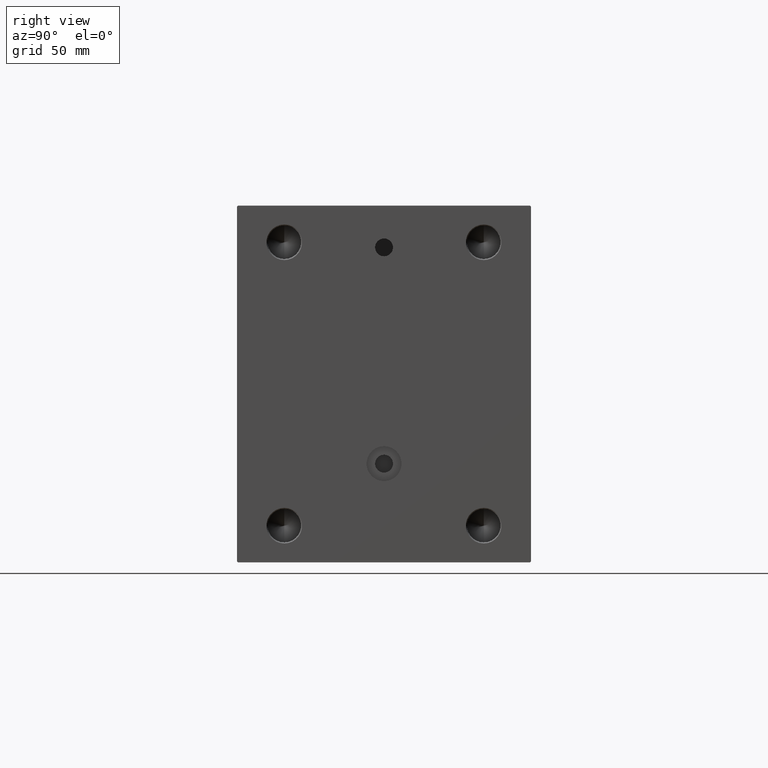
[diagram: clean part render]
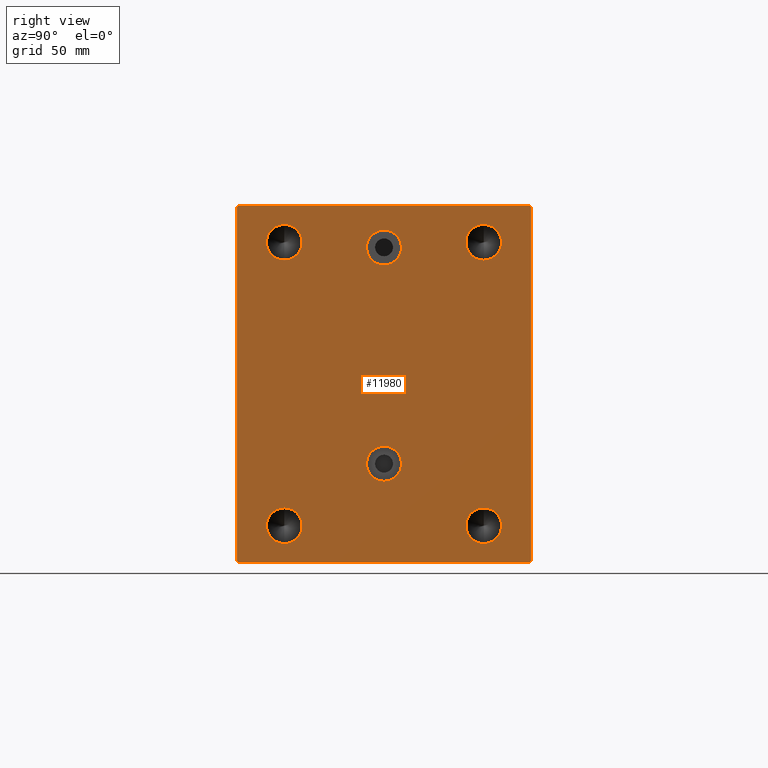
[diagram: same view with one face highlighted and labeled with its STEP entity id]
A machine part, right view. The second image highlights one B-rep face of the part: STEP entity #11980.
In plain terms, the highlighted planar face has unit normal (1, 0, 0).
Its self-contained STEP definition (entity closure, byte-faithful):
#128 = VERTEX_POINT ( 'NONE', #32341 ) ;
#343 = FACE_BOUND ( 'NONE', #4712, .T. ) ;
#427 = ORIENTED_EDGE ( 'NONE', *, *, #10787, .F. ) ;
#527 = DIRECTION ( 'NONE',  ( 0.000000000000000000, 0.000000000000000000, 1.000000000000000000 ) ) ;
#566 = VERTEX_POINT ( 'NONE', #24402 ) ;
#607 = VERTEX_POINT ( 'NONE', #21046 ) ;
#852 = ORIENTED_EDGE ( 'NONE', *, *, #6745, .F. ) ;
#1349 = CARTESIAN_POINT ( 'NONE',  ( 255.0000000000000000, 70.00000000000001421, -85.00000000000000000 ) ) ;
#1381 = DIRECTION ( 'NONE',  ( 1.000000000000000000, 0.000000000000000000, 0.000000000000000000 ) ) ;
#1583 = DIRECTION ( 'NONE',  ( 0.000000000000000000, 0.000000000000000000, -1.000000000000000000 ) ) ;
#2066 = VECTOR ( 'NONE', #29096, 1000.000000000000000 ) ;
#2089 = DIRECTION ( 'NONE',  ( 1.000000000000000000, -0.000000000000000000, -0.000000000000000000 ) ) ;
#2995 = VERTEX_POINT ( 'NONE', #32737 ) ;
#3624 = CARTESIAN_POINT ( 'NONE',  ( 255.0000000000000000, -1.571475800653548713E-14, 65.00000000000001421 ) ) ;
#3709 = FACE_BOUND ( 'NONE', #8506, .T. ) ;
#3815 = CARTESIAN_POINT ( 'NONE',  ( 255.0000000000000000, 47.50000000000000000, -76.00000000000001421 ) ) ;
#4002 = CARTESIAN_POINT ( 'NONE',  ( 255.0000000000000000, 5.673788620449684336E-15, -29.66999999999997328 ) ) ;
#4076 = CARTESIAN_POINT ( 'NONE',  ( 255.0000000000000000, 70.00000000000000000, 85.00000000000001421 ) ) ;
#4096 = AXIS2_PLACEMENT_3D ( 'NONE', #32868, #8978, #43369 ) ;
#4216 = CIRCLE ( 'NONE', #13476, 8.330000000000003624 ) ;
#4306 = CARTESIAN_POINT ( 'NONE',  ( 255.0000000000000000, -1.571475800653548713E-14, 65.00000000000001421 ) ) ;
#4495 = CIRCLE ( 'NONE', #37998, 8.500000000000007105 ) ;
#4686 = CARTESIAN_POINT ( 'NONE',  ( 255.0000000000000000, -69.49999999999995737, -85.00000000000000000 ) ) ;
#4712 = EDGE_LOOP ( 'NONE', ( #7620, #10886 ) ) ;
#4863 = VERTEX_POINT ( 'NONE', #4002 ) ;
#4954 = VECTOR ( 'NONE', #35330, 1000.000000000000000 ) ;
#5183 = LINE ( 'NONE', #38911, #8289 ) ;
#6127 = DIRECTION ( 'NONE',  ( 0.000000000000000000, 0.000000000000000000, -1.000000000000000000 ) ) ;
#6512 = LINE ( 'NONE', #20093, #8556 ) ;
#6586 = DIRECTION ( 'NONE',  ( 1.000000000000000000, -0.000000000000000000, -0.000000000000000000 ) ) ;
#6745 = EDGE_CURVE ( 'NONE', #10003, #32501, #4495, .T. ) ;
#7160 = CIRCLE ( 'NONE', #42834, 8.500000000000007105 ) ;
#7469 = CARTESIAN_POINT ( 'NONE',  ( 255.0000000000000000, 4.653657836759937996E-15, -37.99999999999997868 ) ) ;
#7620 = ORIENTED_EDGE ( 'NONE', *, *, #10365, .F. ) ;
#7665 = CARTESIAN_POINT ( 'NONE',  ( 255.0000000000000000, -77.24999999999803890, 77.25000000000234479 ) ) ;
#7726 = ORIENTED_EDGE ( 'NONE', *, *, #20102, .T. ) ;
#8289 = VECTOR ( 'NONE', #28845, 1000.000000000000114 ) ;
#8506 = EDGE_LOOP ( 'NONE', ( #18135, #30189 ) ) ;
#8556 = VECTOR ( 'NONE', #16749, 1000.000000000000000 ) ;
#8978 = DIRECTION ( 'NONE',  ( 1.000000000000000000, -0.000000000000000000, -0.000000000000000000 ) ) ;
#9203 = CIRCLE ( 'NONE', #36302, 8.500000000000007105 ) ;
#10003 = VERTEX_POINT ( 'NONE', #25921 ) ;
#10091 = CARTESIAN_POINT ( 'NONE',  ( 255.0000000000000000, -47.50000000000000000, 75.99999999999998579 ) ) ;
#10365 = EDGE_CURVE ( 'NONE', #12544, #19549, #13781, .T. ) ;
#10787 = EDGE_CURVE ( 'NONE', #29301, #566, #43070, .T. ) ;
#10886 = ORIENTED_EDGE ( 'NONE', *, *, #25432, .F. ) ;
#11221 = AXIS2_PLACEMENT_3D ( 'NONE', #3624, #37580, #13666 ) ;
#11695 = VERTEX_POINT ( 'NONE', #18892 ) ;
#11892 = CIRCLE ( 'NONE', #43988, 8.330000000000003624 ) ;
#11980 = ADVANCED_FACE ( 'NONE', ( #34517, #3709, #17294, #30948, #21924, #343, #21092 ), #18350, .T. ) ;
#12055 = VECTOR ( 'NONE', #21783, 999.9999999999998863 ) ;
#12115 = DIRECTION ( 'NONE',  ( 0.000000000000000000, 0.000000000000000000, -1.000000000000000000 ) ) ;
#12139 = VECTOR ( 'NONE', #34947, 1000.000000000000000 ) ;
#12544 = VERTEX_POINT ( 'NONE', #35246 ) ;
#12794 = CARTESIAN_POINT ( 'NONE',  ( 255.0000000000000000, -47.50000000000000000, 67.49999999999998579 ) ) ;
#13086 = AXIS2_PLACEMENT_3D ( 'NONE', #43425, #33148, #6127 ) ;
#13088 = EDGE_CURVE ( 'NONE', #32501, #10003, #27430, .T. ) ;
#13476 = AXIS2_PLACEMENT_3D ( 'NONE', #7469, #35373, #35593 ) ;
#13666 = DIRECTION ( 'NONE',  ( 0.000000000000000000, 0.000000000000000000, -1.000000000000000000 ) ) ;
#13695 = VERTEX_POINT ( 'NONE', #32406 ) ;
#13781 = CIRCLE ( 'NONE', #38765, 8.500000000000007105 ) ;
#13963 = DIRECTION ( 'NONE',  ( 0.000000000000000000, 0.000000000000000000, -1.000000000000000000 ) ) ;
#14322 = LINE ( 'NONE', #4076, #4954 ) ;
#14390 = LINE ( 'NONE', #21302, #12139 ) ;
#14461 = EDGE_CURVE ( 'NONE', #27945, #33192, #21672, .T. ) ;
#14554 = DIRECTION ( 'NONE',  ( 0.000000000000000000, 0.000000000000000000, -1.000000000000000000 ) ) ;
#15080 = CARTESIAN_POINT ( 'NONE',  ( 255.0000000000000000, 77.25000000000099476, -77.24999999999884892 ) ) ;
#15166 = CARTESIAN_POINT ( 'NONE',  ( 255.0000000000000000, 70.00000000000000000, 84.49999999999997158 ) ) ;
#15202 = CIRCLE ( 'NONE', #40205, 8.330000000000003624 ) ;
#15461 = CARTESIAN_POINT ( 'NONE',  ( 255.0000000000000000, -70.00000000000000000, 84.99999999999998579 ) ) ;
#15925 = ORIENTED_EDGE ( 'NONE', *, *, #26486, .F. ) ;
#16166 = EDGE_LOOP ( 'NONE', ( #37528, #7726, #18896, #33145, #36464, #41450, #42334, #42518 ) ) ;
#16749 = DIRECTION ( 'NONE',  ( 0.000000000000000000, 1.000000000000000000, 0.000000000000000000 ) ) ;
#17294 = FACE_BOUND ( 'NONE', #20257, .T. ) ;
#17610 = CIRCLE ( 'NONE', #4096, 8.500000000000007105 ) ;
#17680 = LINE ( 'NONE', #7665, #33904 ) ;
#17899 = DIRECTION ( 'NONE',  ( 1.000000000000000000, 0.000000000000000000, 0.000000000000000000 ) ) ;
#18133 = AXIS2_PLACEMENT_3D ( 'NONE', #37181, #6586, #30474 ) ;
#18135 = ORIENTED_EDGE ( 'NONE', *, *, #30876, .F. ) ;
#18329 = CARTESIAN_POINT ( 'NONE',  ( 255.0000000000000000, 47.50000000000000000, 67.49999999999998579 ) ) ;
#18350 = PLANE ( 'NONE',  #39536 ) ;
#18547 = DIRECTION ( 'NONE',  ( 1.000000000000000000, -0.000000000000000000, -0.000000000000000000 ) ) ;
#18719 = DIRECTION ( 'NONE',  ( 0.000000000000000000, 0.000000000000000000, -1.000000000000000000 ) ) ;
#18892 = CARTESIAN_POINT ( 'NONE',  ( 255.0000000000000000, -1.571475800653548713E-14, 56.67000000000000881 ) ) ;
#18896 = ORIENTED_EDGE ( 'NONE', *, *, #35638, .T. ) ;
#19206 = CIRCLE ( 'NONE', #24187, 8.500000000000007105 ) ;
#19541 = VERTEX_POINT ( 'NONE', #34403 ) ;
#19549 = VERTEX_POINT ( 'NONE', #3815 ) ;
#20093 = CARTESIAN_POINT ( 'NONE',  ( 255.0000000000000000, -70.00000000000000000, -85.00000000000000000 ) ) ;
#20102 = EDGE_CURVE ( 'NONE', #19541, #128, #17680, .T. ) ;
#20103 = ORIENTED_EDGE ( 'NONE', *, *, #33991, .F. ) ;
#20257 = EDGE_LOOP ( 'NONE', ( #41548, #852 ) ) ;
#21046 = CARTESIAN_POINT ( 'NONE',  ( 255.0000000000000000, 69.50000000000005684, -85.00000000000000000 ) ) ;
#21092 = FACE_OUTER_BOUND ( 'NONE', #16166, .T. ) ;
#21106 = DIRECTION ( 'NONE',  ( 0.000000000000000000, 0.000000000000000000, -1.000000000000000000 ) ) ;
#21302 = CARTESIAN_POINT ( 'NONE',  ( 255.0000000000000000, 77.25000000000096634, 77.24999999999883471 ) ) ;
#21328 = EDGE_CURVE ( 'NONE', #31616, #36853, #5183, .T. ) ;
#21672 = LINE ( 'NONE', #1349, #43864 ) ;
#21769 = CARTESIAN_POINT ( 'NONE',  ( 255.0000000000000000, 70.00000000000001421, -84.50000000000002842 ) ) ;
#21783 = DIRECTION ( 'NONE',  ( -0.000000000000000000, 0.7071067811865376918, 0.7071067811865574537 ) ) ;
#21924 = FACE_BOUND ( 'NONE', #42137, .T. ) ;
#22097 = EDGE_LOOP ( 'NONE', ( #20103, #22559 ) ) ;
#22559 = ORIENTED_EDGE ( 'NONE', *, *, #31888, .F. ) ;
#23553 = EDGE_CURVE ( 'NONE', #4863, #31322, #11892, .T. ) ;
#23566 = VERTEX_POINT ( 'NONE', #26897 ) ;
#23762 = DIRECTION ( 'NONE',  ( 1.000000000000000000, 0.000000000000000000, -0.000000000000000000 ) ) ;
#24187 = AXIS2_PLACEMENT_3D ( 'NONE', #12794, #2089, #26203 ) ;
#24402 = CARTESIAN_POINT ( 'NONE',  ( 255.0000000000000000, -47.50000000000000000, -59.00000000000002132 ) ) ;
#24464 = DIRECTION ( 'NONE',  ( 1.000000000000000000, -0.000000000000000000, -0.000000000000000000 ) ) ;
#24487 = CARTESIAN_POINT ( 'NONE',  ( 255.0000000000000000, 4.653657836759937996E-15, -46.32999999999998408 ) ) ;
#24799 = ORIENTED_EDGE ( 'NONE', *, *, #30326, .F. ) ;
#25302 = LINE ( 'NONE', #15461, #2066 ) ;
#25432 = EDGE_CURVE ( 'NONE', #19549, #12544, #17610, .T. ) ;
#25908 = DIRECTION ( 'NONE',  ( 0.000000000000000000, -8.163404592832031500E-17, 1.000000000000000000 ) ) ;
#25921 = CARTESIAN_POINT ( 'NONE',  ( 255.0000000000000000, 47.50000000000000000, 59.00000000000000000 ) ) ;
#26203 = DIRECTION ( 'NONE',  ( 0.000000000000000000, 0.000000000000000000, -1.000000000000000000 ) ) ;
#26486 = EDGE_CURVE ( 'NONE', #11695, #23566, #44042, .T. ) ;
#26707 = CARTESIAN_POINT ( 'NONE',  ( 255.0000000000000000, 47.50000000000000000, -67.50000000000001421 ) ) ;
#26897 = CARTESIAN_POINT ( 'NONE',  ( 255.0000000000000000, -1.469462722284573843E-14, 73.33000000000002672 ) ) ;
#27355 = CARTESIAN_POINT ( 'NONE',  ( 255.0000000000000000, -70.00000000000000000, -84.49999999999994316 ) ) ;
#27430 = CIRCLE ( 'NONE', #18133, 8.500000000000007105 ) ;
#27945 = VERTEX_POINT ( 'NONE', #21769 ) ;
#28660 = DIRECTION ( 'NONE',  ( 1.000000000000000000, -0.000000000000000000, -0.000000000000000000 ) ) ;
#28845 = DIRECTION ( 'NONE',  ( -0.000000000000000000, 0.7071067811865376918, -0.7071067811865573427 ) ) ;
#29096 = DIRECTION ( 'NONE',  ( 0.000000000000000000, 0.000000000000000000, -1.000000000000000000 ) ) ;
#29301 = VERTEX_POINT ( 'NONE', #30196 ) ;
#29889 = CARTESIAN_POINT ( 'NONE',  ( 255.0000000000000000, 47.50000000000000000, 75.99999999999998579 ) ) ;
#30051 = EDGE_CURVE ( 'NONE', #607, #27945, #31852, .T. ) ;
#30189 = ORIENTED_EDGE ( 'NONE', *, *, #23553, .F. ) ;
#30196 = CARTESIAN_POINT ( 'NONE',  ( 255.0000000000000000, -47.50000000000000000, -76.00000000000001421 ) ) ;
#30258 = CARTESIAN_POINT ( 'NONE',  ( 255.0000000000000000, 4.653657836759937996E-15, -37.99999999999997868 ) ) ;
#30326 = EDGE_CURVE ( 'NONE', #566, #29301, #9203, .T. ) ;
#30474 = DIRECTION ( 'NONE',  ( 0.000000000000000000, 0.000000000000000000, -1.000000000000000000 ) ) ;
#30876 = EDGE_CURVE ( 'NONE', #31322, #4863, #4216, .T. ) ;
#30948 = FACE_BOUND ( 'NONE', #22097, .T. ) ;
#31322 = VERTEX_POINT ( 'NONE', #24487 ) ;
#31616 = VERTEX_POINT ( 'NONE', #27355 ) ;
#31852 = LINE ( 'NONE', #15080, #12055 ) ;
#31888 = EDGE_CURVE ( 'NONE', #13695, #35138, #19206, .T. ) ;
#31995 = CARTESIAN_POINT ( 'NONE',  ( 255.0000000000000000, 0.000000000000000000, 0.000000000000000000 ) ) ;
#32115 = EDGE_CURVE ( 'NONE', #2995, #19541, #14322, .T. ) ;
#32341 = CARTESIAN_POINT ( 'NONE',  ( 255.0000000000000000, -70.00000000000000000, 84.49999999999998579 ) ) ;
#32406 = CARTESIAN_POINT ( 'NONE',  ( 255.0000000000000000, -47.50000000000000000, 59.00000000000000000 ) ) ;
#32501 = VERTEX_POINT ( 'NONE', #29889 ) ;
#32737 = CARTESIAN_POINT ( 'NONE',  ( 255.0000000000000000, 69.49999999999997158, 85.00000000000001421 ) ) ;
#32868 = CARTESIAN_POINT ( 'NONE',  ( 255.0000000000000000, 47.50000000000000000, -67.50000000000001421 ) ) ;
#33105 = EDGE_CURVE ( 'NONE', #36853, #607, #6512, .T. ) ;
#33145 = ORIENTED_EDGE ( 'NONE', *, *, #21328, .T. ) ;
#33148 = DIRECTION ( 'NONE',  ( 1.000000000000000000, -0.000000000000000000, -0.000000000000000000 ) ) ;
#33192 = VERTEX_POINT ( 'NONE', #15166 ) ;
#33904 = VECTOR ( 'NONE', #40954, 1000.000000000000000 ) ;
#33991 = EDGE_CURVE ( 'NONE', #35138, #13695, #7160, .T. ) ;
#34403 = CARTESIAN_POINT ( 'NONE',  ( 255.0000000000000000, -69.49999999999997158, 84.99999999999998579 ) ) ;
#34517 = FACE_BOUND ( 'NONE', #43520, .T. ) ;
#34947 = DIRECTION ( 'NONE',  ( -0.000000000000000000, -0.7071067811865378028, 0.7071067811865573427 ) ) ;
#35138 = VERTEX_POINT ( 'NONE', #10091 ) ;
#35246 = CARTESIAN_POINT ( 'NONE',  ( 255.0000000000000000, 47.50000000000000000, -59.00000000000002132 ) ) ;
#35330 = DIRECTION ( 'NONE',  ( 0.000000000000000000, -1.000000000000000000, -1.982541115402065110E-16 ) ) ;
#35373 = DIRECTION ( 'NONE',  ( 1.000000000000000000, 0.000000000000000000, -0.000000000000000000 ) ) ;
#35593 = DIRECTION ( 'NONE',  ( 0.000000000000000000, 0.000000000000000000, 1.000000000000000000 ) ) ;
#35638 = EDGE_CURVE ( 'NONE', #128, #31616, #25302, .T. ) ;
#36302 = AXIS2_PLACEMENT_3D ( 'NONE', #38495, #28660, #12115 ) ;
#36464 = ORIENTED_EDGE ( 'NONE', *, *, #33105, .T. ) ;
#36853 = VERTEX_POINT ( 'NONE', #4686 ) ;
#37181 = CARTESIAN_POINT ( 'NONE',  ( 255.0000000000000000, 47.50000000000000000, 67.49999999999998579 ) ) ;
#37528 = ORIENTED_EDGE ( 'NONE', *, *, #32115, .T. ) ;
#37580 = DIRECTION ( 'NONE',  ( 1.000000000000000000, 0.000000000000000000, 0.000000000000000000 ) ) ;
#37998 = AXIS2_PLACEMENT_3D ( 'NONE', #18329, #18547, #1583 ) ;
#38159 = EDGE_CURVE ( 'NONE', #33192, #2995, #14390, .T. ) ;
#38495 = CARTESIAN_POINT ( 'NONE',  ( 255.0000000000000000, -47.50000000000000000, -67.50000000000001421 ) ) ;
#38765 = AXIS2_PLACEMENT_3D ( 'NONE', #26707, #40345, #18719 ) ;
#38911 = CARTESIAN_POINT ( 'NONE',  ( 255.0000000000000000, -77.25000000000093792, -77.24999999999880629 ) ) ;
#39536 = AXIS2_PLACEMENT_3D ( 'NONE', #31995, #1381, #13963 ) ;
#40205 = AXIS2_PLACEMENT_3D ( 'NONE', #4306, #17899, #14554 ) ;
#40345 = DIRECTION ( 'NONE',  ( 1.000000000000000000, -0.000000000000000000, -0.000000000000000000 ) ) ;
#40954 = DIRECTION ( 'NONE',  ( 0.000000000000000000, -0.7071067811865672237, -0.7071067811865279218 ) ) ;
#41224 = ORIENTED_EDGE ( 'NONE', *, *, #43112, .F. ) ;
#41450 = ORIENTED_EDGE ( 'NONE', *, *, #30051, .T. ) ;
#41456 = CARTESIAN_POINT ( 'NONE',  ( 255.0000000000000000, -47.50000000000000000, 67.49999999999998579 ) ) ;
#41548 = ORIENTED_EDGE ( 'NONE', *, *, #13088, .F. ) ;
#42137 = EDGE_LOOP ( 'NONE', ( #24799, #427 ) ) ;
#42334 = ORIENTED_EDGE ( 'NONE', *, *, #14461, .T. ) ;
#42518 = ORIENTED_EDGE ( 'NONE', *, *, #38159, .T. ) ;
#42834 = AXIS2_PLACEMENT_3D ( 'NONE', #41456, #24464, #21106 ) ;
#43070 = CIRCLE ( 'NONE', #13086, 8.500000000000007105 ) ;
#43112 = EDGE_CURVE ( 'NONE', #23566, #11695, #15202, .T. ) ;
#43369 = DIRECTION ( 'NONE',  ( 0.000000000000000000, 0.000000000000000000, -1.000000000000000000 ) ) ;
#43425 = CARTESIAN_POINT ( 'NONE',  ( 255.0000000000000000, -47.50000000000000000, -67.50000000000001421 ) ) ;
#43520 = EDGE_LOOP ( 'NONE', ( #15925, #41224 ) ) ;
#43864 = VECTOR ( 'NONE', #25908, 1000.000000000000000 ) ;
#43988 = AXIS2_PLACEMENT_3D ( 'NONE', #30258, #23762, #527 ) ;
#44042 = CIRCLE ( 'NONE', #11221, 8.330000000000003624 ) ;